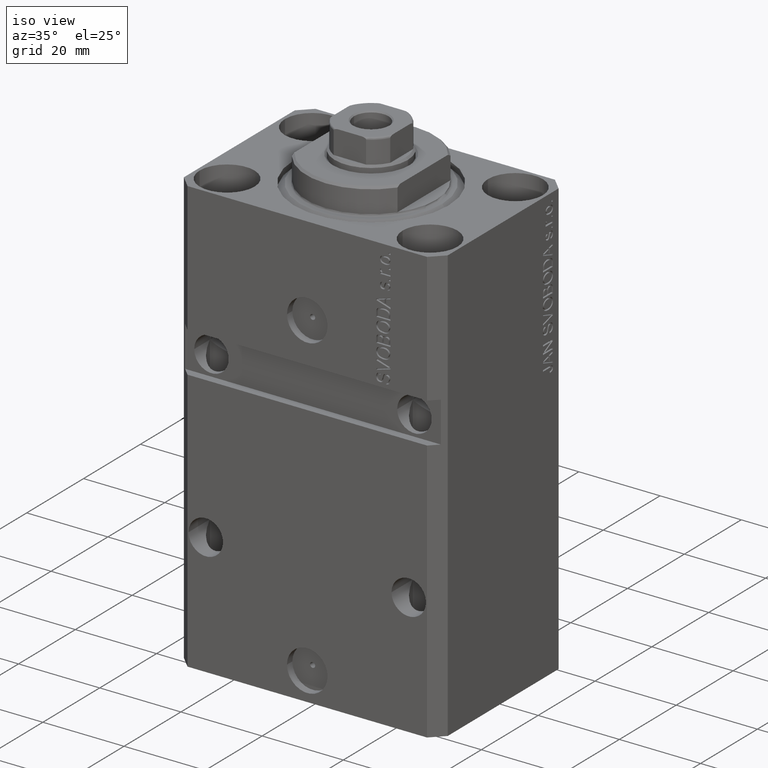
[diagram: clean part render]
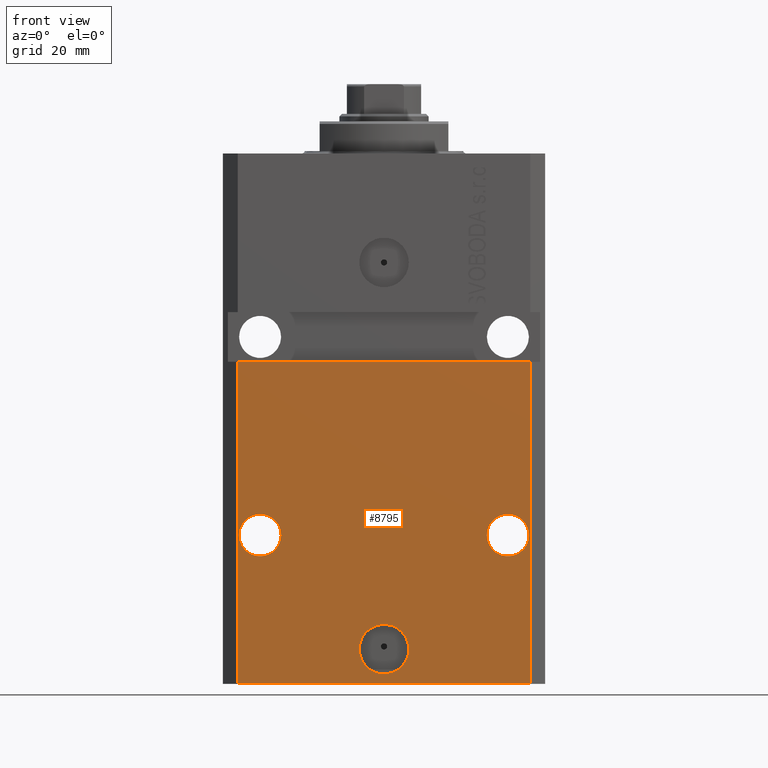
[diagram: tour spotlight — one face highlighted and labeled with its STEP entity id]
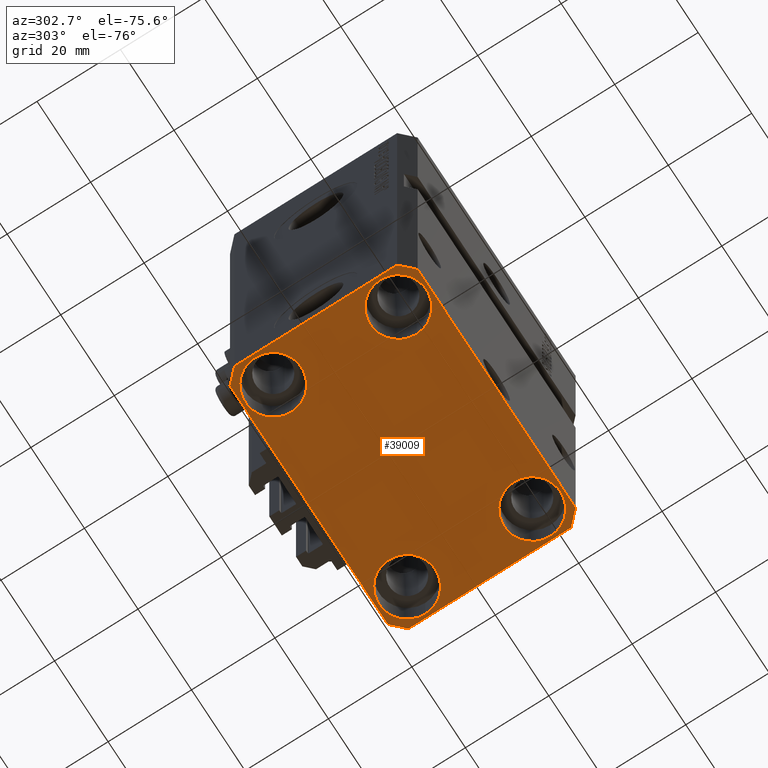
[diagram: tour spotlight — one face highlighted and labeled with its STEP entity id]
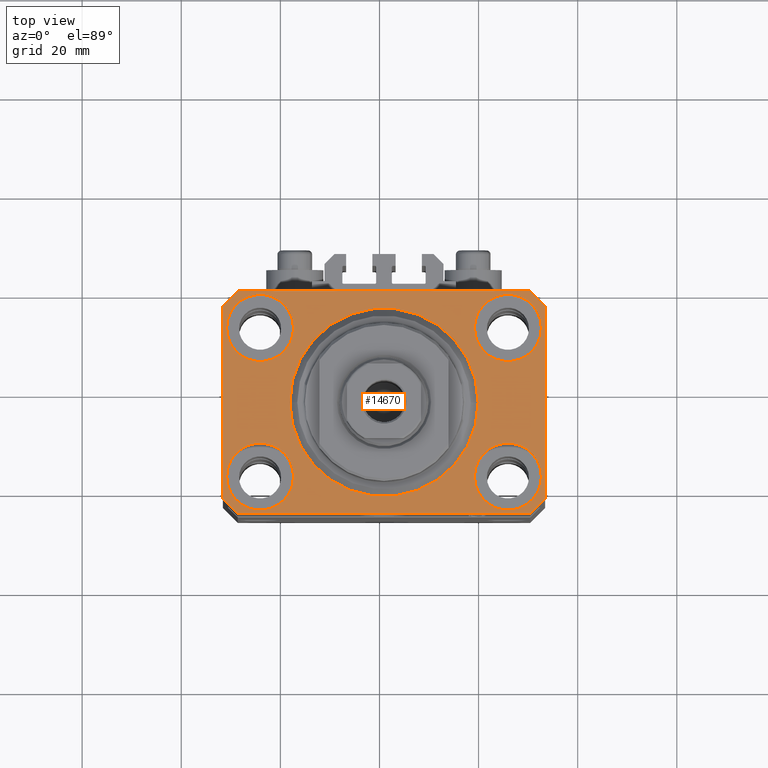
[diagram: tour spotlight — one face highlighted and labeled with its STEP entity id]
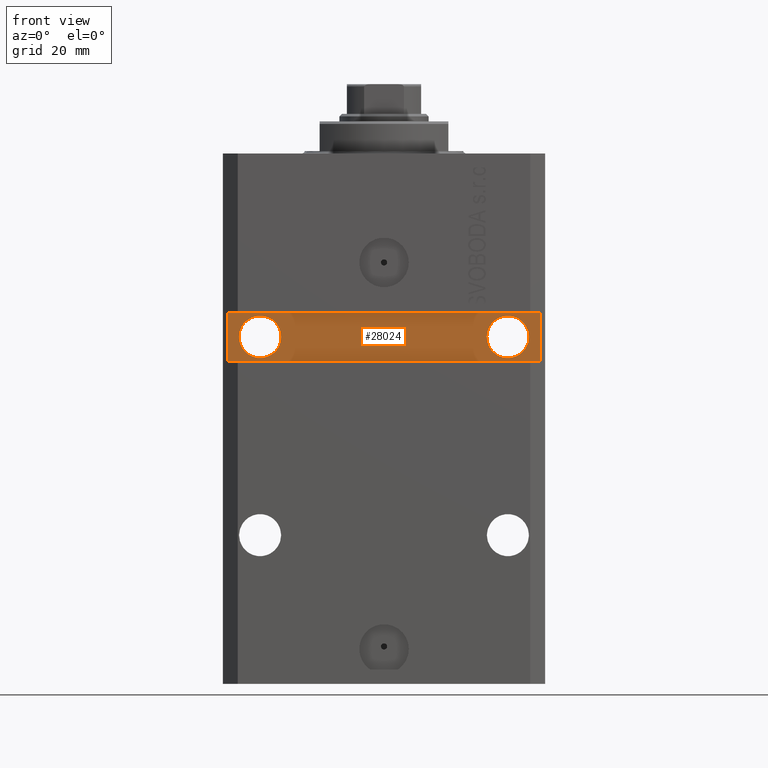
[diagram: tour spotlight — one face highlighted and labeled with its STEP entity id]
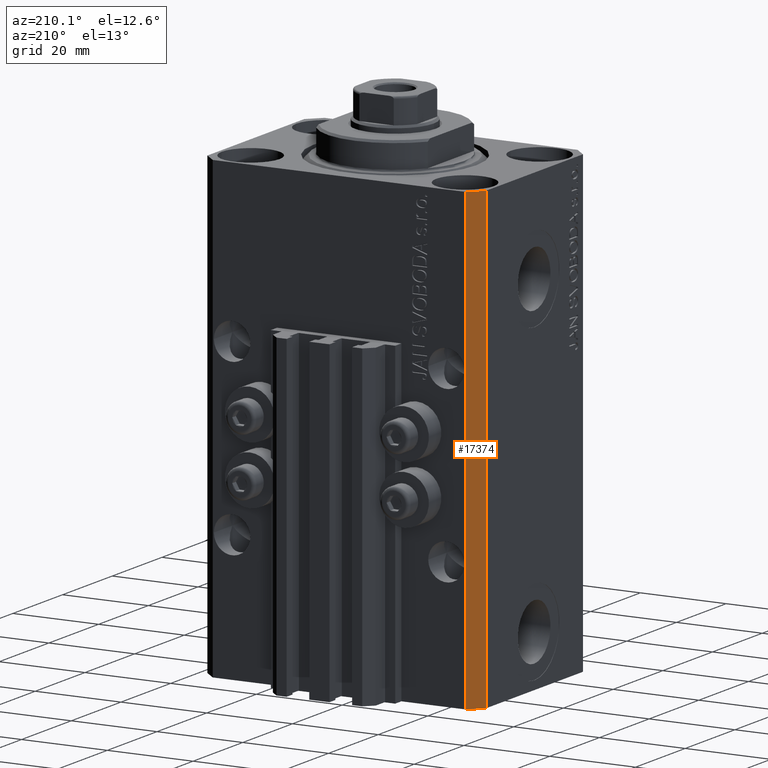
[diagram: tour spotlight — one face highlighted and labeled with its STEP entity id]
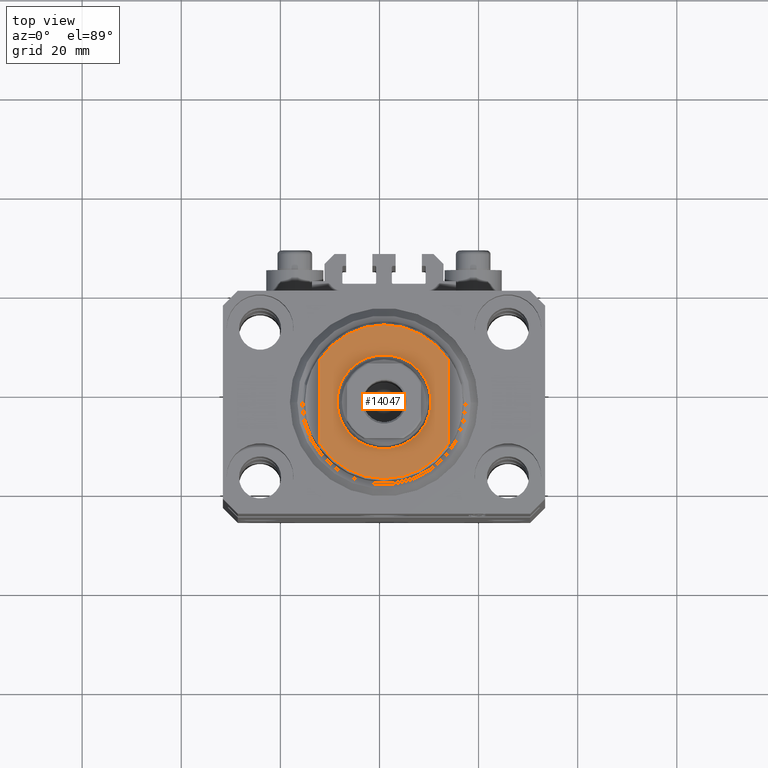
[diagram: tour spotlight — one face highlighted and labeled with its STEP entity id]
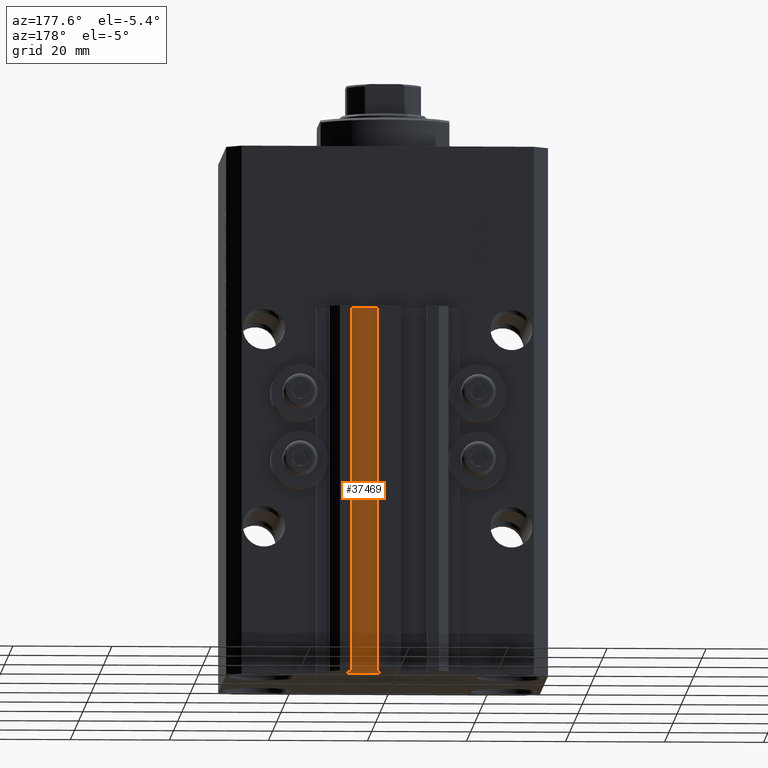
[diagram: tour spotlight — one face highlighted and labeled with its STEP entity id]
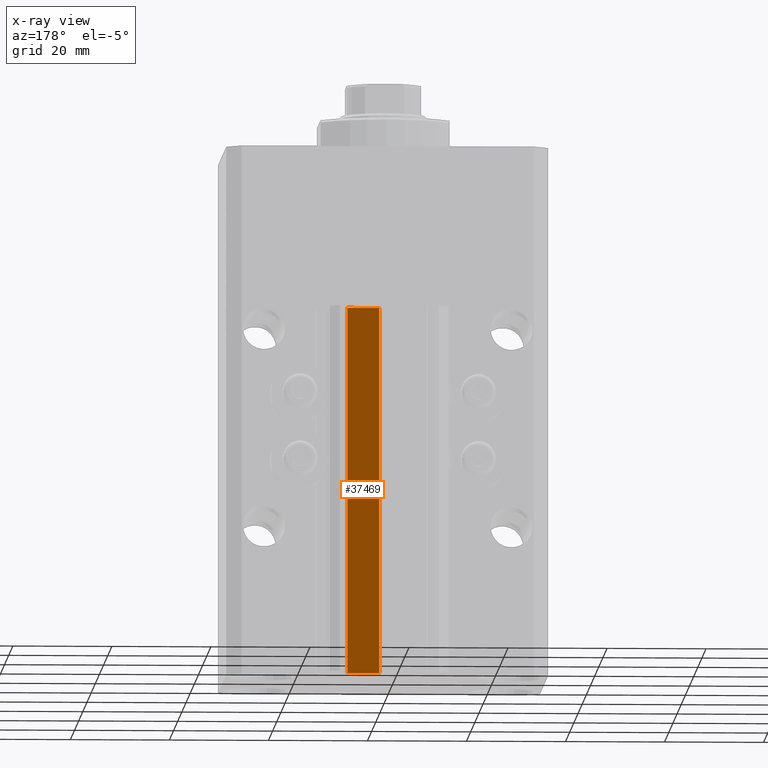
[diagram: x-ray of the same camera — body ghosted, this tour face saturated]
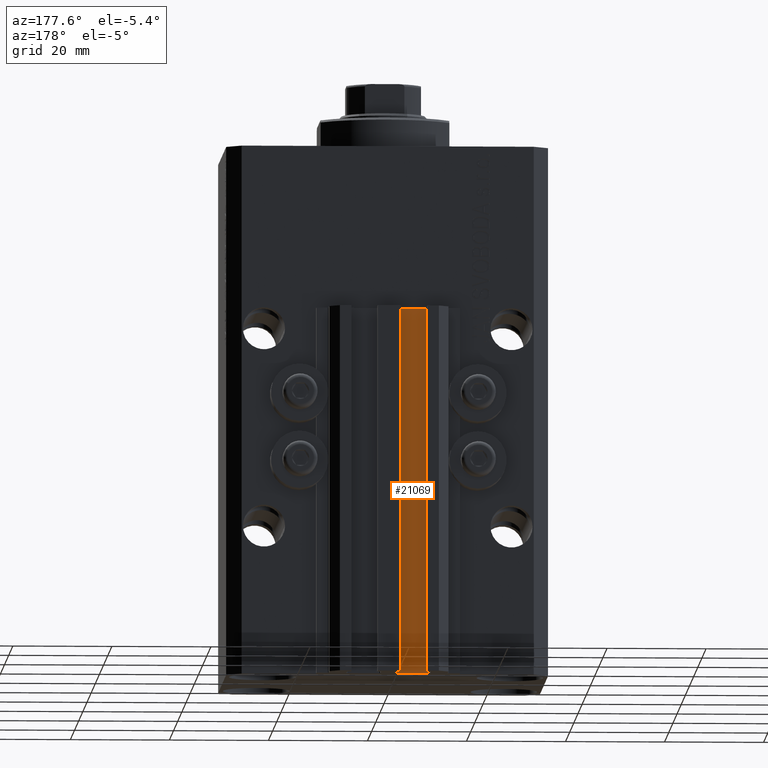
[diagram: tour spotlight — one face highlighted and labeled with its STEP entity id]
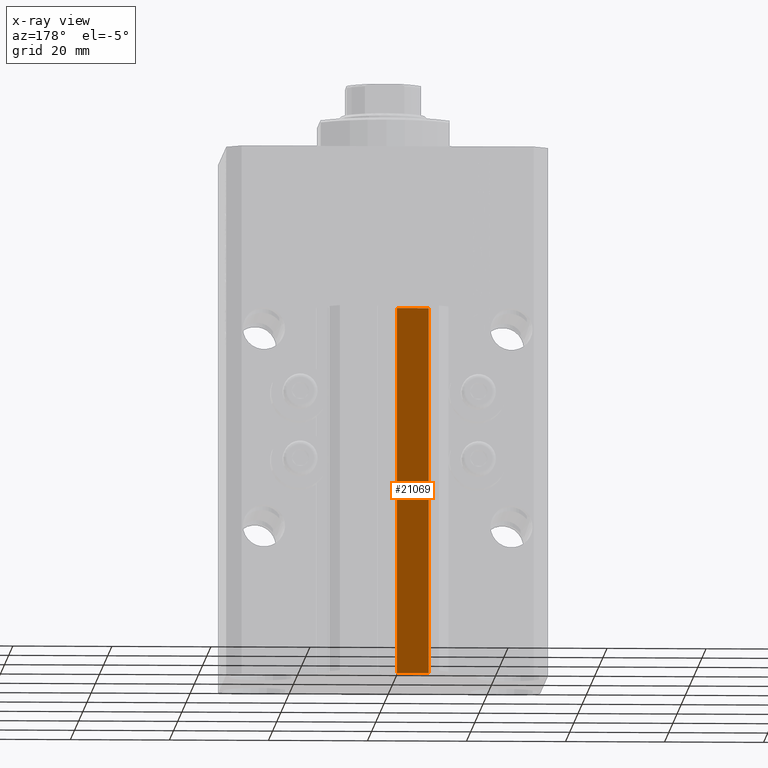
[diagram: x-ray of the same camera — body ghosted, this tour face saturated]
A machine part: a face-by-face anatomy tour. The part has 1087 B-rep faces; the first image is the clean iso view, then the 8 largest visible faces are spotlighted one at a time (largest first), each with its STEP entity span.

Face 1 — front view, entity #8795. In plain terms, the highlighted planar face has unit normal (0, -1, 0).
Definition (entity closure, byte-faithful):
#481 = CARTESIAN_POINT ( 'NONE',  ( -29.49999999999650413, -22.49999999999949907, -107.0000000000000000 ) ) ;
#580 = CIRCLE ( 'NONE', #22203, 4.249999999989057642 ) ;
#684 = CARTESIAN_POINT ( 'NONE',  ( 29.24999999998906475, -22.49999999999949196, -76.99999999999998579 ) ) ;
#824 = AXIS2_PLACEMENT_3D ( 'NONE', #9503, #9269, #38455 ) ;
#1284 = VECTOR ( 'NONE', #14742, 1000.000000000000000 ) ;
#1403 = ORIENTED_EDGE ( 'NONE', *, *, #35271, .T. ) ;
#1609 = ORIENTED_EDGE ( 'NONE', *, *, #3823, .F. ) ;
#1806 = CARTESIAN_POINT ( 'NONE',  ( -29.49999999999650413, -22.49999999999949907, -41.99999999999999289 ) ) ;
#1867 = ORIENTED_EDGE ( 'NONE', *, *, #22863, .F. ) ;
#1971 = FACE_BOUND ( 'NONE', #23644, .T. ) ;
#2688 = EDGE_CURVE ( 'NONE', #46966, #34352, #35234, .T. ) ;
#2728 = VECTOR ( 'NONE', #9188, 1000.000000000000000 ) ;
#3658 = VERTEX_POINT ( 'NONE', #12866 ) ;
#3823 = EDGE_CURVE ( 'NONE', #3658, #10182, #27415, .T. ) ;
#4876 = DIRECTION ( 'NONE',  ( 1.000000000000000000, 1.176083712526788232E-16, 0.000000000000000000 ) ) ;
#5356 = FACE_BOUND ( 'NONE', #31770, .T. ) ;
#6715 = DIRECTION ( 'NONE',  ( 1.000000000000000000, 0.000000000000000000, 0.000000000000000000 ) ) ;
#7432 = ORIENTED_EDGE ( 'NONE', *, *, #16140, .F. ) ;
#8191 = LINE ( 'NONE', #481, #1284 ) ;
#8492 = PLANE ( 'NONE',  #45134 ) ;
#8733 = CARTESIAN_POINT ( 'NONE',  ( -29.49999999999650413, -22.49999999999949907, -107.0000000000000000 ) ) ;
#8795 = ADVANCED_FACE ( 'NONE', ( #5356, #1971, #45856, #31176 ), #8492, .T. ) ;
#9188 = DIRECTION ( 'NONE',  ( 0.000000000000000000, 0.000000000000000000, 1.000000000000000000 ) ) ;
#9269 = DIRECTION ( 'NONE',  ( 1.176083712526788232E-16, -1.000000000000000000, 0.000000000000000000 ) ) ;
#9431 = VERTEX_POINT ( 'NONE', #33600 ) ;
#9503 = CARTESIAN_POINT ( 'NONE',  ( -25.00000000000000000, -22.49999999999949907, -76.99999999999998579 ) ) ;
#9617 = EDGE_CURVE ( 'NONE', #46966, #34244, #8191, .T. ) ;
#10182 = VERTEX_POINT ( 'NONE', #684 ) ;
#10218 = DIRECTION ( 'NONE',  ( 1.000000000000000000, 0.000000000000000000, 0.000000000000000000 ) ) ;
#10615 = EDGE_CURVE ( 'NONE', #20120, #9431, #20591, .T. ) ;
#10911 = DIRECTION ( 'NONE',  ( 1.000000000000000000, 1.067522139062765303E-16, 1.067522139062765303E-16 ) ) ;
#12866 = CARTESIAN_POINT ( 'NONE',  ( 20.75000000001094946, -22.49999999999949196, -76.99999999999998579 ) ) ;
#13037 = CIRCLE ( 'NONE', #44586, 5.000000000000006217 ) ;
#13346 = ORIENTED_EDGE ( 'NONE', *, *, #9617, .T. ) ;
#13439 = ORIENTED_EDGE ( 'NONE', *, *, #2688, .F. ) ;
#14742 = DIRECTION ( 'NONE',  ( 1.000000000000000000, 1.176083712526788232E-16, 0.000000000000000000 ) ) ;
#15094 = CIRCLE ( 'NONE', #18187, 4.249999999976592058 ) ;
#16051 = ORIENTED_EDGE ( 'NONE', *, *, #36355, .F. ) ;
#16122 = DIRECTION ( 'NONE',  ( -1.000000000000000000, 0.000000000000000000, 0.000000000000000000 ) ) ;
#16140 = EDGE_CURVE ( 'NONE', #10182, #3658, #580, .T. ) ;
#16698 = CARTESIAN_POINT ( 'NONE',  ( -29.49999999999650413, -22.49999999999949907, -107.0000000000000000 ) ) ;
#16837 = CARTESIAN_POINT ( 'NONE',  ( -25.00000000000000000, -22.49999999999949907, -76.99999999999998579 ) ) ;
#17072 = LINE ( 'NONE', #24293, #34297 ) ;
#17481 = DIRECTION ( 'NONE',  ( 1.176083712526788232E-16, -1.000000000000000000, 0.000000000000000000 ) ) ;
#17515 = VERTEX_POINT ( 'NONE', #31058 ) ;
#17837 = VERTEX_POINT ( 'NONE', #18813 ) ;
#18187 = AXIS2_PLACEMENT_3D ( 'NONE', #16837, #20699, #16122 ) ;
#18396 = CARTESIAN_POINT ( 'NONE',  ( -32.49999999999650413, -22.49999999999949907, -41.99999999999999289 ) ) ;
#18668 = ORIENTED_EDGE ( 'NONE', *, *, #43620, .F. ) ;
#18813 = CARTESIAN_POINT ( 'NONE',  ( -29.24999999997659472, -22.49999999999949907, -76.99999999999998579 ) ) ;
#19164 = EDGE_LOOP ( 'NONE', ( #16051, #1867 ) ) ;
#20120 = VERTEX_POINT ( 'NONE', #45700 ) ;
#20591 = CIRCLE ( 'NONE', #45201, 5.000000000000006217 ) ;
#20699 = DIRECTION ( 'NONE',  ( 1.176083712526788232E-16, -1.000000000000000000, 0.000000000000000000 ) ) ;
#22022 = DIRECTION ( 'NONE',  ( 1.176083712526788232E-16, -1.000000000000000000, 0.000000000000000000 ) ) ;
#22203 = AXIS2_PLACEMENT_3D ( 'NONE', #25642, #22022, #10218 ) ;
#22337 = CARTESIAN_POINT ( 'NONE',  ( 29.49999999999650413, -22.49999999999949196, -107.0000000000000000 ) ) ;
#22715 = CARTESIAN_POINT ( 'NONE',  ( 2.646188353185214061E-15, -22.49999999999949551, -99.99999999999998579 ) ) ;
#22863 = EDGE_CURVE ( 'NONE', #17837, #24565, #27006, .T. ) ;
#23644 = EDGE_LOOP ( 'NONE', ( #7432, #1609 ) ) ;
#24293 = CARTESIAN_POINT ( 'NONE',  ( 29.49999999999650413, -22.49999999999949196, -107.0000000000000000 ) ) ;
#24565 = VERTEX_POINT ( 'NONE', #27261 ) ;
#24754 = DIRECTION ( 'NONE',  ( 1.176083712526788232E-16, -1.000000000000000000, 0.000000000000000000 ) ) ;
#25642 = CARTESIAN_POINT ( 'NONE',  ( 25.00000000000000711, -22.49999999999949196, -76.99999999999998579 ) ) ;
#27006 = CIRCLE ( 'NONE', #824, 4.249999999976592058 ) ;
#27261 = CARTESIAN_POINT ( 'NONE',  ( -20.75000000002340883, -22.49999999999949907, -76.99999999999998579 ) ) ;
#27415 = CIRCLE ( 'NONE', #45879, 4.249999999989057642 ) ;
#30516 = EDGE_LOOP ( 'NONE', ( #32207, #13439, #13346, #1403 ) ) ;
#30555 = EDGE_CURVE ( 'NONE', #34352, #17515, #36720, .T. ) ;
#31058 = CARTESIAN_POINT ( 'NONE',  ( 29.49999999999650058, -22.49999999999949196, -41.99999999999998579 ) ) ;
#31176 = FACE_OUTER_BOUND ( 'NONE', #30516, .T. ) ;
#31420 = DIRECTION ( 'NONE',  ( 1.176083712526788232E-16, -1.000000000000000000, 0.000000000000000000 ) ) ;
#31635 = CARTESIAN_POINT ( 'NONE',  ( -29.49999999999650413, -22.49999999999949907, -107.0000000000000000 ) ) ;
#31770 = EDGE_LOOP ( 'NONE', ( #40720, #18668 ) ) ;
#31790 = DIRECTION ( 'NONE',  ( 0.000000000000000000, 0.000000000000000000, 1.000000000000000000 ) ) ;
#32207 = ORIENTED_EDGE ( 'NONE', *, *, #30555, .F. ) ;
#32568 = VECTOR ( 'NONE', #10911, 1000.000000000000000 ) ;
#33600 = CARTESIAN_POINT ( 'NONE',  ( -5.000000000000003553, -22.49999999999949551, -99.99999999999998579 ) ) ;
#34244 = VERTEX_POINT ( 'NONE', #22337 ) ;
#34297 = VECTOR ( 'NONE', #31790, 1000.000000000000000 ) ;
#34352 = VERTEX_POINT ( 'NONE', #1806 ) ;
#35234 = LINE ( 'NONE', #31635, #2728 ) ;
#35271 = EDGE_CURVE ( 'NONE', #34244, #17515, #17072, .T. ) ;
#35318 = DIRECTION ( 'NONE',  ( 1.000000000000000000, 0.000000000000000000, 0.000000000000000000 ) ) ;
#36080 = DIRECTION ( 'NONE',  ( 1.000000000000000000, 0.000000000000000000, 0.000000000000000000 ) ) ;
#36355 = EDGE_CURVE ( 'NONE', #24565, #17837, #15094, .T. ) ;
#36720 = LINE ( 'NONE', #18396, #32568 ) ;
#38455 = DIRECTION ( 'NONE',  ( -1.000000000000000000, 0.000000000000000000, 0.000000000000000000 ) ) ;
#40720 = ORIENTED_EDGE ( 'NONE', *, *, #10615, .F. ) ;
#42642 = DIRECTION ( 'NONE',  ( 1.176083712526788232E-16, -1.000000000000000000, 0.000000000000000000 ) ) ;
#42774 = CARTESIAN_POINT ( 'NONE',  ( 2.646188353185214061E-15, -22.49999999999949551, -99.99999999999998579 ) ) ;
#43620 = EDGE_CURVE ( 'NONE', #9431, #20120, #13037, .T. ) ;
#44586 = AXIS2_PLACEMENT_3D ( 'NONE', #42774, #17481, #35318 ) ;
#45134 = AXIS2_PLACEMENT_3D ( 'NONE', #16698, #31420, #4876 ) ;
#45201 = AXIS2_PLACEMENT_3D ( 'NONE', #22715, #24754, #36080 ) ;
#45700 = CARTESIAN_POINT ( 'NONE',  ( 5.000000000000008882, -22.49999999999949551, -99.99999999999998579 ) ) ;
#45856 = FACE_BOUND ( 'NONE', #19164, .T. ) ;
#45879 = AXIS2_PLACEMENT_3D ( 'NONE', #47228, #42642, #6715 ) ;
#46966 = VERTEX_POINT ( 'NONE', #8733 ) ;
#47228 = CARTESIAN_POINT ( 'NONE',  ( 25.00000000000000711, -22.49999999999949196, -76.99999999999998579 ) ) ;

Face 2 — auxiliary view, entity #39009. In plain terms, the highlighted planar face has unit normal (0, 0, 1).
Definition (entity closure, byte-faithful):
#138 = AXIS2_PLACEMENT_3D ( 'NONE', #21892, #13943, #44047 ) ;
#481 = CARTESIAN_POINT ( 'NONE',  ( -29.49999999999650413, -22.49999999999949907, -107.0000000000000000 ) ) ;
#612 = CARTESIAN_POINT ( 'NONE',  ( -25.00000000000000355, 15.00000000000000000, -107.0000000000000000 ) ) ;
#697 = VECTOR ( 'NONE', #7591, 1000.000000000000000 ) ;
#793 = EDGE_CURVE ( 'NONE', #34505, #8469, #9129, .T. ) ;
#916 = ORIENTED_EDGE ( 'NONE', *, *, #37931, .T. ) ;
#1180 = VERTEX_POINT ( 'NONE', #33121 ) ;
#1243 = CARTESIAN_POINT ( 'NONE',  ( -31.75000000002253842, 15.00000000000000000, -107.0000000000000000 ) ) ;
#1284 = VECTOR ( 'NONE', #14742, 1000.000000000000000 ) ;
#1408 = DIRECTION ( 'NONE',  ( 1.334402673828349134E-14, 1.000000000000000000, 0.000000000000000000 ) ) ;
#1419 = CARTESIAN_POINT ( 'NONE',  ( 29.49999999999707967, 22.49999999999951328, -107.0000000000000000 ) ) ;
#1612 = DIRECTION ( 'NONE',  ( 0.7071067811865483499, 0.7071067811865466846, 0.000000000000000000 ) ) ;
#1735 = CARTESIAN_POINT ( 'NONE',  ( 32.49999999999651124, -19.49999999999949196, -107.0000000000000000 ) ) ;
#2133 = ORIENTED_EDGE ( 'NONE', *, *, #45068, .T. ) ;
#2192 = CARTESIAN_POINT ( 'NONE',  ( 24.99999999999999645, 15.00000000000000888, -107.0000000000000000 ) ) ;
#2971 = LINE ( 'NONE', #17698, #3255 ) ;
#3255 = VECTOR ( 'NONE', #24695, 1000.000000000000000 ) ;
#3916 = CARTESIAN_POINT ( 'NONE',  ( -18.24999999997747224, 15.00000000000000000, -107.0000000000000000 ) ) ;
#3956 = DIRECTION ( 'NONE',  ( 1.000000000000000000, 0.000000000000000000, 0.000000000000000000 ) ) ;
#4216 = CARTESIAN_POINT ( 'NONE',  ( -29.49999999999650413, 22.49999999999949907, -107.0000000000000000 ) ) ;
#4747 = VERTEX_POINT ( 'NONE', #1243 ) ;
#4752 = AXIS2_PLACEMENT_3D ( 'NONE', #22762, #22061, #30243 ) ;
#5085 = CIRCLE ( 'NONE', #7382, 6.750000000022533087 ) ;
#5547 = ORIENTED_EDGE ( 'NONE', *, *, #44124, .T. ) ;
#6647 = DIRECTION ( 'NONE',  ( -0.7071067811865474617, -0.7071067811865474617, 0.000000000000000000 ) ) ;
#7308 = EDGE_CURVE ( 'NONE', #7585, #46966, #38842, .T. ) ;
#7382 = AXIS2_PLACEMENT_3D ( 'NONE', #612, #45222, #15331 ) ;
#7528 = CARTESIAN_POINT ( 'NONE',  ( 18.25000000002253842, -15.00000000000000000, -107.0000000000000000 ) ) ;
#7585 = VERTEX_POINT ( 'NONE', #41808 ) ;
#7591 = DIRECTION ( 'NONE',  ( -0.7071067811865352493, 0.7071067811865597852, 0.000000000000000000 ) ) ;
#8056 = LINE ( 'NONE', #37255, #33962 ) ;
#8191 = LINE ( 'NONE', #481, #1284 ) ;
#8395 = ORIENTED_EDGE ( 'NONE', *, *, #793, .F. ) ;
#8469 = VERTEX_POINT ( 'NONE', #9506 ) ;
#8733 = CARTESIAN_POINT ( 'NONE',  ( -29.49999999999650413, -22.49999999999949907, -107.0000000000000000 ) ) ;
#8839 = CARTESIAN_POINT ( 'NONE',  ( 29.49999999999650413, -22.49999999999949196, -107.0000000000000000 ) ) ;
#8959 = FACE_BOUND ( 'NONE', #40783, .T. ) ;
#9129 = LINE ( 'NONE', #23610, #33497 ) ;
#9506 = CARTESIAN_POINT ( 'NONE',  ( 32.49999999999702993, 19.49999999999945999, -107.0000000000000000 ) ) ;
#9617 = EDGE_CURVE ( 'NONE', #46966, #34244, #8191, .T. ) ;
#9880 = DIRECTION ( 'NONE',  ( 1.000000000000000000, 0.000000000000000000, 0.000000000000000000 ) ) ;
#10385 = DIRECTION ( 'NONE',  ( -0.000000000000000000, -0.000000000000000000, 1.000000000000000000 ) ) ;
#10716 = EDGE_CURVE ( 'NONE', #19369, #46114, #15236, .T. ) ;
#10987 = LINE ( 'NONE', #18014, #697 ) ;
#11086 = VERTEX_POINT ( 'NONE', #11250 ) ;
#11250 = CARTESIAN_POINT ( 'NONE',  ( 31.74999999995845101, 15.00000000000000888, -107.0000000000000000 ) ) ;
#12001 = EDGE_CURVE ( 'NONE', #34244, #34505, #41636, .T. ) ;
#12335 = FACE_BOUND ( 'NONE', #28245, .T. ) ;
#12528 = DIRECTION ( 'NONE',  ( -0.000000000000000000, -0.000000000000000000, 1.000000000000000000 ) ) ;
#13260 = CIRCLE ( 'NONE', #26375, 6.749999999958452790 ) ;
#13943 = DIRECTION ( 'NONE',  ( -0.000000000000000000, -0.000000000000000000, 1.000000000000000000 ) ) ;
#14742 = DIRECTION ( 'NONE',  ( 1.000000000000000000, 1.176083712526788232E-16, 0.000000000000000000 ) ) ;
#15165 = ORIENTED_EDGE ( 'NONE', *, *, #36551, .T. ) ;
#15236 = LINE ( 'NONE', #28848, #20480 ) ;
#15331 = DIRECTION ( 'NONE',  ( 1.000000000000000000, 0.000000000000000000, 0.000000000000000000 ) ) ;
#15394 = CARTESIAN_POINT ( 'NONE',  ( -32.49999999999650413, 19.49999999999949907, -107.0000000000000000 ) ) ;
#15833 = VERTEX_POINT ( 'NONE', #20968 ) ;
#16113 = AXIS2_PLACEMENT_3D ( 'NONE', #31118, #12528, #45796 ) ;
#16212 = PLANE ( 'NONE',  #45175 ) ;
#16215 = VERTEX_POINT ( 'NONE', #3916 ) ;
#16997 = AXIS2_PLACEMENT_3D ( 'NONE', #29597, #44275, #25976 ) ;
#17079 = ORIENTED_EDGE ( 'NONE', *, *, #30777, .T. ) ;
#17698 = CARTESIAN_POINT ( 'NONE',  ( 29.49999999999707967, 22.49999999999951328, -107.0000000000000000 ) ) ;
#18014 = CARTESIAN_POINT ( 'NONE',  ( 32.49999999999702993, 19.49999999999945999, -107.0000000000000000 ) ) ;
#18216 = CIRCLE ( 'NONE', #36700, 6.749999999977465137 ) ;
#18420 = CIRCLE ( 'NONE', #16113, 6.750000000041541881 ) ;
#18537 = CIRCLE ( 'NONE', #16997, 6.750000000041541881 ) ;
#18567 = VERTEX_POINT ( 'NONE', #24660 ) ;
#19106 = CARTESIAN_POINT ( 'NONE',  ( 0.000000000000000000, 0.000000000000000000, -107.0000000000000000 ) ) ;
#19369 = VERTEX_POINT ( 'NONE', #4216 ) ;
#19716 = VECTOR ( 'NONE', #1612, 1000.000000000000000 ) ;
#19956 = ORIENTED_EDGE ( 'NONE', *, *, #25906, .T. ) ;
#20480 = VECTOR ( 'NONE', #6647, 1000.000000000000114 ) ;
#20921 = ORIENTED_EDGE ( 'NONE', *, *, #29490, .T. ) ;
#20968 = CARTESIAN_POINT ( 'NONE',  ( -31.75000000004154899, -15.00000000000000000, -107.0000000000000000 ) ) ;
#21471 = CARTESIAN_POINT ( 'NONE',  ( 24.99999999999999645, 15.00000000000000888, -107.0000000000000000 ) ) ;
#21892 = CARTESIAN_POINT ( 'NONE',  ( 25.00000000000000355, -15.00000000000000000, -107.0000000000000000 ) ) ;
#22031 = VECTOR ( 'NONE', #39087, 1000.000000000000114 ) ;
#22061 = DIRECTION ( 'NONE',  ( -0.000000000000000000, -0.000000000000000000, 1.000000000000000000 ) ) ;
#22337 = CARTESIAN_POINT ( 'NONE',  ( 29.49999999999650413, -22.49999999999949196, -107.0000000000000000 ) ) ;
#22496 = CIRCLE ( 'NONE', #4752, 6.750000000022533087 ) ;
#22717 = FACE_BOUND ( 'NONE', #30073, .T. ) ;
#22762 = CARTESIAN_POINT ( 'NONE',  ( -25.00000000000000355, 15.00000000000000000, -107.0000000000000000 ) ) ;
#23209 = DIRECTION ( 'NONE',  ( 1.000000000000000000, 0.000000000000000000, -0.000000000000000000 ) ) ;
#23610 = CARTESIAN_POINT ( 'NONE',  ( 32.49999999999651124, -19.49999999999949196, -107.0000000000000000 ) ) ;
#23884 = EDGE_CURVE ( 'NONE', #46114, #7585, #8056, .T. ) ;
#24251 = VERTEX_POINT ( 'NONE', #31425 ) ;
#24392 = DIRECTION ( 'NONE',  ( 1.000000000000000000, 0.000000000000000000, 0.000000000000000000 ) ) ;
#24660 = CARTESIAN_POINT ( 'NONE',  ( 31.74999999997746869, -15.00000000000000000, -107.0000000000000000 ) ) ;
#24695 = DIRECTION ( 'NONE',  ( -1.000000000000000000, -2.352167425053553784E-16, 0.000000000000000000 ) ) ;
#25906 = EDGE_CURVE ( 'NONE', #24251, #15833, #18537, .T. ) ;
#25940 = DIRECTION ( 'NONE',  ( 0.000000000000000000, -1.000000000000000000, 0.000000000000000000 ) ) ;
#25976 = DIRECTION ( 'NONE',  ( 1.000000000000000000, 0.000000000000000000, 0.000000000000000000 ) ) ;
#26254 = ORIENTED_EDGE ( 'NONE', *, *, #29914, .T. ) ;
#26340 = FACE_OUTER_BOUND ( 'NONE', #42893, .T. ) ;
#26375 = AXIS2_PLACEMENT_3D ( 'NONE', #2192, #10385, #24392 ) ;
#26584 = VERTEX_POINT ( 'NONE', #1419 ) ;
#28245 = EDGE_LOOP ( 'NONE', ( #15165, #20921 ) ) ;
#28492 = VERTEX_POINT ( 'NONE', #7528 ) ;
#28808 = ORIENTED_EDGE ( 'NONE', *, *, #47413, .F. ) ;
#28848 = CARTESIAN_POINT ( 'NONE',  ( -29.49999999999650413, 22.49999999999949907, -107.0000000000000000 ) ) ;
#29490 = EDGE_CURVE ( 'NONE', #16215, #4747, #22496, .T. ) ;
#29597 = CARTESIAN_POINT ( 'NONE',  ( -25.00000000000000355, -15.00000000000000000, -107.0000000000000000 ) ) ;
#29823 = ORIENTED_EDGE ( 'NONE', *, *, #23884, .F. ) ;
#29914 = EDGE_CURVE ( 'NONE', #18567, #28492, #38676, .T. ) ;
#30073 = EDGE_LOOP ( 'NONE', ( #916, #26254 ) ) ;
#30243 = DIRECTION ( 'NONE',  ( 1.000000000000000000, 0.000000000000000000, 0.000000000000000000 ) ) ;
#30399 = EDGE_CURVE ( 'NONE', #26584, #19369, #2971, .T. ) ;
#30777 = EDGE_CURVE ( 'NONE', #1180, #11086, #13260, .T. ) ;
#30788 = AXIS2_PLACEMENT_3D ( 'NONE', #21471, #32089, #9880 ) ;
#30930 = FACE_BOUND ( 'NONE', #32627, .T. ) ;
#31118 = CARTESIAN_POINT ( 'NONE',  ( -25.00000000000000355, -15.00000000000000000, -107.0000000000000000 ) ) ;
#31425 = CARTESIAN_POINT ( 'NONE',  ( -18.24999999995845812, -15.00000000000000000, -107.0000000000000000 ) ) ;
#31867 = CARTESIAN_POINT ( 'NONE',  ( -32.49999999999650413, -19.49999999999949907, -107.0000000000000000 ) ) ;
#32089 = DIRECTION ( 'NONE',  ( -0.000000000000000000, -0.000000000000000000, 1.000000000000000000 ) ) ;
#32627 = EDGE_LOOP ( 'NONE', ( #5547, #19956 ) ) ;
#33121 = CARTESIAN_POINT ( 'NONE',  ( 18.25000000004154543, 15.00000000000000888, -107.0000000000000000 ) ) ;
#33469 = ORIENTED_EDGE ( 'NONE', *, *, #10716, .F. ) ;
#33497 = VECTOR ( 'NONE', #1408, 1000.000000000000000 ) ;
#33962 = VECTOR ( 'NONE', #25940, 1000.000000000000000 ) ;
#34244 = VERTEX_POINT ( 'NONE', #22337 ) ;
#34505 = VERTEX_POINT ( 'NONE', #1735 ) ;
#36313 = DIRECTION ( 'NONE',  ( -0.000000000000000000, -0.000000000000000000, 1.000000000000000000 ) ) ;
#36551 = EDGE_CURVE ( 'NONE', #4747, #16215, #5085, .T. ) ;
#36700 = AXIS2_PLACEMENT_3D ( 'NONE', #47157, #36313, #3956 ) ;
#37255 = CARTESIAN_POINT ( 'NONE',  ( -32.49999999999650413, 19.49999999999949907, -107.0000000000000000 ) ) ;
#37931 = EDGE_CURVE ( 'NONE', #28492, #18567, #18216, .T. ) ;
#38230 = ORIENTED_EDGE ( 'NONE', *, *, #7308, .F. ) ;
#38676 = CIRCLE ( 'NONE', #138, 6.749999999977465137 ) ;
#38842 = LINE ( 'NONE', #31867, #22031 ) ;
#39009 = ADVANCED_FACE ( 'NONE', ( #30930, #22717, #8959, #12335, #26340 ), #16212, .F. ) ;
#39087 = DIRECTION ( 'NONE',  ( 0.7071067811865474617, -0.7071067811865474617, 0.000000000000000000 ) ) ;
#39972 = ORIENTED_EDGE ( 'NONE', *, *, #12001, .F. ) ;
#40783 = EDGE_LOOP ( 'NONE', ( #17079, #2133 ) ) ;
#41506 = DIRECTION ( 'NONE',  ( 0.000000000000000000, 0.000000000000000000, 1.000000000000000000 ) ) ;
#41562 = CIRCLE ( 'NONE', #30788, 6.749999999958452790 ) ;
#41636 = LINE ( 'NONE', #8839, #19716 ) ;
#41808 = CARTESIAN_POINT ( 'NONE',  ( -32.49999999999650413, -19.49999999999949907, -107.0000000000000000 ) ) ;
#42893 = EDGE_LOOP ( 'NONE', ( #47232, #28808, #8395, #39972, #46255, #38230, #29823, #33469 ) ) ;
#44047 = DIRECTION ( 'NONE',  ( 1.000000000000000000, 0.000000000000000000, 0.000000000000000000 ) ) ;
#44124 = EDGE_CURVE ( 'NONE', #15833, #24251, #18420, .T. ) ;
#44275 = DIRECTION ( 'NONE',  ( -0.000000000000000000, -0.000000000000000000, 1.000000000000000000 ) ) ;
#45068 = EDGE_CURVE ( 'NONE', #11086, #1180, #41562, .T. ) ;
#45175 = AXIS2_PLACEMENT_3D ( 'NONE', #19106, #41506, #23209 ) ;
#45222 = DIRECTION ( 'NONE',  ( -0.000000000000000000, -0.000000000000000000, 1.000000000000000000 ) ) ;
#45796 = DIRECTION ( 'NONE',  ( 1.000000000000000000, 0.000000000000000000, 0.000000000000000000 ) ) ;
#46114 = VERTEX_POINT ( 'NONE', #15394 ) ;
#46255 = ORIENTED_EDGE ( 'NONE', *, *, #9617, .F. ) ;
#46966 = VERTEX_POINT ( 'NONE', #8733 ) ;
#47157 = CARTESIAN_POINT ( 'NONE',  ( 25.00000000000000355, -15.00000000000000000, -107.0000000000000000 ) ) ;
#47232 = ORIENTED_EDGE ( 'NONE', *, *, #30399, .F. ) ;
#47413 = EDGE_CURVE ( 'NONE', #8469, #26584, #10987, .T. ) ;

Face 3 — top view, entity #14670. In plain terms, the highlighted planar face has unit normal (0, 0, 1).
Definition (entity closure, byte-faithful):
#10 = VERTEX_POINT ( 'NONE', #40893 ) ;
#262 = CARTESIAN_POINT ( 'NONE',  ( 25.00000000000000355, -15.00000000000000000, 0.000000000000000000 ) ) ;
#739 = VERTEX_POINT ( 'NONE', #7684 ) ;
#1250 = VECTOR ( 'NONE', #3976, 1000.000000000000000 ) ;
#1373 = DIRECTION ( 'NONE',  ( 1.000000000000000000, 0.000000000000000000, 0.000000000000000000 ) ) ;
#1775 = CARTESIAN_POINT ( 'NONE',  ( 24.99999999999999645, 15.00000000000000888, 0.000000000000000000 ) ) ;
#2330 = VERTEX_POINT ( 'NONE', #3312 ) ;
#2620 = VERTEX_POINT ( 'NONE', #45109 ) ;
#2722 = AXIS2_PLACEMENT_3D ( 'NONE', #40703, #15381, #18770 ) ;
#2748 = EDGE_CURVE ( 'NONE', #10, #739, #2909, .T. ) ;
#2754 = CIRCLE ( 'NONE', #33527, 6.749999999977465137 ) ;
#2909 = LINE ( 'NONE', #32584, #32042 ) ;
#3312 = CARTESIAN_POINT ( 'NONE',  ( -31.75000000004154899, -15.00000000000000000, 0.000000000000000000 ) ) ;
#3443 = EDGE_CURVE ( 'NONE', #15770, #14914, #12389, .T. ) ;
#3585 = CARTESIAN_POINT ( 'NONE',  ( 31.74999999997746869, -15.00000000000000000, 0.000000000000000000 ) ) ;
#3592 = EDGE_CURVE ( 'NONE', #47122, #41247, #45115, .T. ) ;
#3976 = DIRECTION ( 'NONE',  ( 1.000000000000000000, 1.176083712526788232E-16, 0.000000000000000000 ) ) ;
#4385 = DIRECTION ( 'NONE',  ( -0.7071067811865352493, 0.7071067811865597852, 0.000000000000000000 ) ) ;
#4542 = CIRCLE ( 'NONE', #8397, 19.00000000000000000 ) ;
#4664 = VERTEX_POINT ( 'NONE', #29728 ) ;
#4691 = CARTESIAN_POINT ( 'NONE',  ( -29.49999999999650413, -22.49999999999949907, 0.000000000000000000 ) ) ;
#4697 = EDGE_CURVE ( 'NONE', #21782, #15770, #23215, .T. ) ;
#4931 = CARTESIAN_POINT ( 'NONE',  ( -18.24999999995846167, -15.00000000000000000, 0.000000000000000000 ) ) ;
#4987 = CARTESIAN_POINT ( 'NONE',  ( -25.00000000000000355, -15.00000000000000000, 0.000000000000000000 ) ) ;
#5010 = EDGE_CURVE ( 'NONE', #14914, #28778, #10237, .T. ) ;
#5276 = CARTESIAN_POINT ( 'NONE',  ( 29.49999999999707967, 22.49999999999951328, 0.000000000000000000 ) ) ;
#5362 = VERTEX_POINT ( 'NONE', #45017 ) ;
#5524 = CARTESIAN_POINT ( 'NONE',  ( -25.00000000000000355, -15.00000000000000000, 0.000000000000000000 ) ) ;
#6426 = CARTESIAN_POINT ( 'NONE',  ( -25.00000000000000355, 15.00000000000000000, 0.000000000000000000 ) ) ;
#6455 = EDGE_CURVE ( 'NONE', #43623, #21782, #9821, .T. ) ;
#7684 = CARTESIAN_POINT ( 'NONE',  ( -29.49999999999650413, -22.49999999999949907, 0.000000000000000000 ) ) ;
#8153 = CIRCLE ( 'NONE', #18208, 6.750000000022533087 ) ;
#8300 = LINE ( 'NONE', #4691, #1250 ) ;
#8365 = EDGE_CURVE ( 'NONE', #739, #22720, #8300, .T. ) ;
#8397 = AXIS2_PLACEMENT_3D ( 'NONE', #33544, #29691, #18830 ) ;
#8738 = LINE ( 'NONE', #23234, #43505 ) ;
#9489 = FACE_BOUND ( 'NONE', #27270, .T. ) ;
#9821 = LINE ( 'NONE', #28883, #35837 ) ;
#9853 = DIRECTION ( 'NONE',  ( 1.000000000000000000, 0.000000000000000000, 0.000000000000000000 ) ) ;
#9905 = DIRECTION ( 'NONE',  ( 1.000000000000000000, 0.000000000000000000, 0.000000000000000000 ) ) ;
#9972 = DIRECTION ( 'NONE',  ( 0.000000000000000000, 0.000000000000000000, 1.000000000000000000 ) ) ;
#10214 = DIRECTION ( 'NONE',  ( 1.000000000000000000, 0.000000000000000000, 0.000000000000000000 ) ) ;
#10237 = LINE ( 'NONE', #46401, #16710 ) ;
#10782 = EDGE_LOOP ( 'NONE', ( #35717, #40475 ) ) ;
#11899 = CARTESIAN_POINT ( 'NONE',  ( 29.49999999999707967, 22.49999999999951328, 0.000000000000000000 ) ) ;
#12210 = EDGE_CURVE ( 'NONE', #29185, #4664, #8153, .T. ) ;
#12342 = CARTESIAN_POINT ( 'NONE',  ( 32.49999999999702993, 19.49999999999945999, 0.000000000000000000 ) ) ;
#12389 = LINE ( 'NONE', #11899, #41258 ) ;
#12467 = CARTESIAN_POINT ( 'NONE',  ( 24.99999999999999645, 15.00000000000000888, 0.000000000000000000 ) ) ;
#12697 = DIRECTION ( 'NONE',  ( 1.000000000000000000, 0.000000000000000000, 0.000000000000000000 ) ) ;
#12802 = VECTOR ( 'NONE', #4385, 1000.000000000000000 ) ;
#13088 = ORIENTED_EDGE ( 'NONE', *, *, #19542, .F. ) ;
#13582 = FACE_BOUND ( 'NONE', #10782, .T. ) ;
#13606 = CARTESIAN_POINT ( 'NONE',  ( 32.49999999999651124, -19.49999999999949196, 0.000000000000000000 ) ) ;
#13664 = AXIS2_PLACEMENT_3D ( 'NONE', #5524, #20251, #9853 ) ;
#13769 = DIRECTION ( 'NONE',  ( 0.000000000000000000, 0.000000000000000000, 1.000000000000000000 ) ) ;
#13831 = CARTESIAN_POINT ( 'NONE',  ( 0.000000000000000000, 0.000000000000000000, 0.000000000000000000 ) ) ;
#14225 = CARTESIAN_POINT ( 'NONE',  ( -32.49999999999650413, 19.49999999999949907, 0.000000000000000000 ) ) ;
#14304 = ORIENTED_EDGE ( 'NONE', *, *, #30746, .F. ) ;
#14670 = ADVANCED_FACE ( 'NONE', ( #41075, #9489, #27596, #13582, #24205, #46865 ), #16738, .T. ) ;
#14914 = VERTEX_POINT ( 'NONE', #33818 ) ;
#14976 = DIRECTION ( 'NONE',  ( 0.000000000000000000, 0.000000000000000000, 1.000000000000000000 ) ) ;
#15381 = DIRECTION ( 'NONE',  ( 0.000000000000000000, 0.000000000000000000, 1.000000000000000000 ) ) ;
#15696 = ORIENTED_EDGE ( 'NONE', *, *, #23476, .F. ) ;
#15770 = VERTEX_POINT ( 'NONE', #5276 ) ;
#16439 = CARTESIAN_POINT ( 'NONE',  ( 25.00000000000000355, -15.00000000000000000, 0.000000000000000000 ) ) ;
#16710 = VECTOR ( 'NONE', #35323, 1000.000000000000114 ) ;
#16738 = PLANE ( 'NONE',  #26768 ) ;
#17136 = AXIS2_PLACEMENT_3D ( 'NONE', #20541, #13769, #25111 ) ;
#18151 = VERTEX_POINT ( 'NONE', #4931 ) ;
#18208 = AXIS2_PLACEMENT_3D ( 'NONE', #6426, #35851, #46935 ) ;
#18519 = DIRECTION ( 'NONE',  ( 0.000000000000000000, -1.000000000000000000, 0.000000000000000000 ) ) ;
#18770 = DIRECTION ( 'NONE',  ( 1.000000000000000000, 0.000000000000000000, 0.000000000000000000 ) ) ;
#18830 = DIRECTION ( 'NONE',  ( 1.000000000000000000, 0.000000000000000000, 0.000000000000000000 ) ) ;
#19159 = DIRECTION ( 'NONE',  ( -1.000000000000000000, -2.352167425053553784E-16, 0.000000000000000000 ) ) ;
#19221 = CARTESIAN_POINT ( 'NONE',  ( 29.49999999999650413, -22.49999999999949196, 0.000000000000000000 ) ) ;
#19245 = CARTESIAN_POINT ( 'NONE',  ( 18.25000000004154543, 15.00000000000000888, 0.000000000000000000 ) ) ;
#19542 = EDGE_CURVE ( 'NONE', #5362, #2620, #4542, .T. ) ;
#20109 = CIRCLE ( 'NONE', #47053, 6.749999999958452790 ) ;
#20232 = CIRCLE ( 'NONE', #17136, 19.00000000000000000 ) ;
#20251 = DIRECTION ( 'NONE',  ( 0.000000000000000000, 0.000000000000000000, 1.000000000000000000 ) ) ;
#20541 = CARTESIAN_POINT ( 'NONE',  ( 0.000000000000000000, 0.000000000000000000, 0.000000000000000000 ) ) ;
#20598 = DIRECTION ( 'NONE',  ( 1.000000000000000000, 0.000000000000000000, -0.000000000000000000 ) ) ;
#21782 = VERTEX_POINT ( 'NONE', #26740 ) ;
#22377 = ORIENTED_EDGE ( 'NONE', *, *, #3592, .F. ) ;
#22378 = ORIENTED_EDGE ( 'NONE', *, *, #38424, .F. ) ;
#22720 = VERTEX_POINT ( 'NONE', #19221 ) ;
#23215 = LINE ( 'NONE', #12342, #12802 ) ;
#23234 = CARTESIAN_POINT ( 'NONE',  ( 29.49999999999650413, -22.49999999999949196, 0.000000000000000000 ) ) ;
#23323 = CARTESIAN_POINT ( 'NONE',  ( -32.49999999999650413, 19.49999999999949907, 0.000000000000000000 ) ) ;
#23476 = EDGE_CURVE ( 'NONE', #41247, #47122, #20109, .T. ) ;
#23513 = CIRCLE ( 'NONE', #2722, 6.750000000022533087 ) ;
#24205 = FACE_BOUND ( 'NONE', #39681, .T. ) ;
#24515 = ORIENTED_EDGE ( 'NONE', *, *, #26924, .T. ) ;
#24682 = VERTEX_POINT ( 'NONE', #24845 ) ;
#24703 = ORIENTED_EDGE ( 'NONE', *, *, #6455, .T. ) ;
#24750 = VECTOR ( 'NONE', #18519, 1000.000000000000000 ) ;
#24802 = VERTEX_POINT ( 'NONE', #3585 ) ;
#24845 = CARTESIAN_POINT ( 'NONE',  ( 18.25000000002253842, -15.00000000000000000, 0.000000000000000000 ) ) ;
#25111 = DIRECTION ( 'NONE',  ( 1.000000000000000000, 0.000000000000000000, 0.000000000000000000 ) ) ;
#25248 = CIRCLE ( 'NONE', #13664, 6.750000000041541881 ) ;
#26225 = LINE ( 'NONE', #23323, #24750 ) ;
#26740 = CARTESIAN_POINT ( 'NONE',  ( 32.49999999999702993, 19.49999999999945999, 0.000000000000000000 ) ) ;
#26768 = AXIS2_PLACEMENT_3D ( 'NONE', #13831, #45892, #20598 ) ;
#26924 = EDGE_CURVE ( 'NONE', #28778, #10, #26225, .T. ) ;
#27270 = EDGE_LOOP ( 'NONE', ( #38950, #22378 ) ) ;
#27596 = FACE_BOUND ( 'NONE', #33811, .T. ) ;
#27717 = ORIENTED_EDGE ( 'NONE', *, *, #2748, .T. ) ;
#28334 = ORIENTED_EDGE ( 'NONE', *, *, #39592, .F. ) ;
#28774 = DIRECTION ( 'NONE',  ( 1.000000000000000000, 0.000000000000000000, 0.000000000000000000 ) ) ;
#28778 = VERTEX_POINT ( 'NONE', #14225 ) ;
#28883 = CARTESIAN_POINT ( 'NONE',  ( 32.49999999999651124, -19.49999999999949196, 0.000000000000000000 ) ) ;
#28959 = DIRECTION ( 'NONE',  ( 0.7071067811865474617, -0.7071067811865474617, 0.000000000000000000 ) ) ;
#29185 = VERTEX_POINT ( 'NONE', #38485 ) ;
#29594 = ORIENTED_EDGE ( 'NONE', *, *, #40623, .F. ) ;
#29691 = DIRECTION ( 'NONE',  ( 0.000000000000000000, 0.000000000000000000, 1.000000000000000000 ) ) ;
#29716 = AXIS2_PLACEMENT_3D ( 'NONE', #1775, #9972, #10214 ) ;
#29728 = CARTESIAN_POINT ( 'NONE',  ( -18.24999999997747224, 15.00000000000000000, 0.000000000000000000 ) ) ;
#29807 = AXIS2_PLACEMENT_3D ( 'NONE', #16439, #31876, #9905 ) ;
#30578 = DIRECTION ( 'NONE',  ( 0.000000000000000000, 0.000000000000000000, 1.000000000000000000 ) ) ;
#30746 = EDGE_CURVE ( 'NONE', #2620, #5362, #20232, .T. ) ;
#30906 = EDGE_LOOP ( 'NONE', ( #41125, #44049, #24515, #27717, #36968, #42825, #24703, #42783 ) ) ;
#30953 = DIRECTION ( 'NONE',  ( 0.7071067811865483499, 0.7071067811865466846, 0.000000000000000000 ) ) ;
#31378 = CIRCLE ( 'NONE', #29807, 6.749999999977465137 ) ;
#31534 = DIRECTION ( 'NONE',  ( 0.000000000000000000, 0.000000000000000000, 1.000000000000000000 ) ) ;
#31876 = DIRECTION ( 'NONE',  ( 0.000000000000000000, 0.000000000000000000, 1.000000000000000000 ) ) ;
#32042 = VECTOR ( 'NONE', #28959, 1000.000000000000114 ) ;
#32584 = CARTESIAN_POINT ( 'NONE',  ( -32.49999999999650413, -19.49999999999949907, 0.000000000000000000 ) ) ;
#33527 = AXIS2_PLACEMENT_3D ( 'NONE', #262, #14976, #28774 ) ;
#33544 = CARTESIAN_POINT ( 'NONE',  ( 0.000000000000000000, 0.000000000000000000, 0.000000000000000000 ) ) ;
#33811 = EDGE_LOOP ( 'NONE', ( #15696, #22377 ) ) ;
#33818 = CARTESIAN_POINT ( 'NONE',  ( -29.49999999999650413, 22.49999999999949907, 0.000000000000000000 ) ) ;
#34355 = EDGE_LOOP ( 'NONE', ( #29594, #28334 ) ) ;
#34653 = EDGE_CURVE ( 'NONE', #22720, #43623, #8738, .T. ) ;
#35233 = EDGE_CURVE ( 'NONE', #4664, #29185, #23513, .T. ) ;
#35323 = DIRECTION ( 'NONE',  ( -0.7071067811865474617, -0.7071067811865474617, 0.000000000000000000 ) ) ;
#35717 = ORIENTED_EDGE ( 'NONE', *, *, #35233, .F. ) ;
#35767 = EDGE_CURVE ( 'NONE', #24802, #24682, #2754, .T. ) ;
#35837 = VECTOR ( 'NONE', #47200, 1000.000000000000000 ) ;
#35851 = DIRECTION ( 'NONE',  ( 0.000000000000000000, 0.000000000000000000, 1.000000000000000000 ) ) ;
#36798 = AXIS2_PLACEMENT_3D ( 'NONE', #4987, #31534, #12697 ) ;
#36968 = ORIENTED_EDGE ( 'NONE', *, *, #8365, .T. ) ;
#38424 = EDGE_CURVE ( 'NONE', #24682, #24802, #31378, .T. ) ;
#38485 = CARTESIAN_POINT ( 'NONE',  ( -31.75000000002253842, 15.00000000000000000, 0.000000000000000000 ) ) ;
#38950 = ORIENTED_EDGE ( 'NONE', *, *, #35767, .F. ) ;
#39592 = EDGE_CURVE ( 'NONE', #2330, #18151, #25248, .T. ) ;
#39681 = EDGE_LOOP ( 'NONE', ( #14304, #13088 ) ) ;
#40475 = ORIENTED_EDGE ( 'NONE', *, *, #12210, .F. ) ;
#40623 = EDGE_CURVE ( 'NONE', #18151, #2330, #45250, .T. ) ;
#40703 = CARTESIAN_POINT ( 'NONE',  ( -25.00000000000000355, 15.00000000000000000, 0.000000000000000000 ) ) ;
#40893 = CARTESIAN_POINT ( 'NONE',  ( -32.49999999999650413, -19.49999999999949907, 0.000000000000000000 ) ) ;
#41075 = FACE_BOUND ( 'NONE', #34355, .T. ) ;
#41125 = ORIENTED_EDGE ( 'NONE', *, *, #3443, .T. ) ;
#41247 = VERTEX_POINT ( 'NONE', #43147 ) ;
#41258 = VECTOR ( 'NONE', #19159, 1000.000000000000000 ) ;
#42783 = ORIENTED_EDGE ( 'NONE', *, *, #4697, .T. ) ;
#42825 = ORIENTED_EDGE ( 'NONE', *, *, #34653, .T. ) ;
#43147 = CARTESIAN_POINT ( 'NONE',  ( 31.74999999995845101, 15.00000000000000888, 0.000000000000000000 ) ) ;
#43505 = VECTOR ( 'NONE', #30953, 1000.000000000000000 ) ;
#43623 = VERTEX_POINT ( 'NONE', #13606 ) ;
#44049 = ORIENTED_EDGE ( 'NONE', *, *, #5010, .T. ) ;
#45017 = CARTESIAN_POINT ( 'NONE',  ( -19.00000000000000000, 2.326828918379970970E-15, 0.000000000000000000 ) ) ;
#45109 = CARTESIAN_POINT ( 'NONE',  ( 19.00000000000000000, 0.000000000000000000, 0.000000000000000000 ) ) ;
#45115 = CIRCLE ( 'NONE', #29716, 6.749999999958452790 ) ;
#45250 = CIRCLE ( 'NONE', #36798, 6.750000000041541881 ) ;
#45892 = DIRECTION ( 'NONE',  ( 0.000000000000000000, 0.000000000000000000, 1.000000000000000000 ) ) ;
#46401 = CARTESIAN_POINT ( 'NONE',  ( -29.49999999999650413, 22.49999999999949907, 0.000000000000000000 ) ) ;
#46865 = FACE_OUTER_BOUND ( 'NONE', #30906, .T. ) ;
#46935 = DIRECTION ( 'NONE',  ( 1.000000000000000000, 0.000000000000000000, 0.000000000000000000 ) ) ;
#47053 = AXIS2_PLACEMENT_3D ( 'NONE', #12467, #30578, #1373 ) ;
#47122 = VERTEX_POINT ( 'NONE', #19245 ) ;
#47200 = DIRECTION ( 'NONE',  ( 1.334402673828349134E-14, 1.000000000000000000, 0.000000000000000000 ) ) ;

Face 4 — front view, entity #28024. In plain terms, the highlighted planar face has unit normal (0, -1, 0).
Definition (entity closure, byte-faithful):
#734 = AXIS2_PLACEMENT_3D ( 'NONE', #31851, #46522, #42912 ) ;
#1142 = VERTEX_POINT ( 'NONE', #7067 ) ;
#1779 = EDGE_LOOP ( 'NONE', ( #44801, #31568 ) ) ;
#1946 = DIRECTION ( 'NONE',  ( 1.000000000000000000, 0.000000000000000000, 0.000000000000000000 ) ) ;
#2787 = CIRCLE ( 'NONE', #28974, 4.249999999989050536 ) ;
#3986 = CIRCLE ( 'NONE', #32533, 4.249999999993782751 ) ;
#4054 = VERTEX_POINT ( 'NONE', #27418 ) ;
#4446 = DIRECTION ( 'NONE',  ( 1.000000000000000000, 1.067522139062765303E-16, 0.000000000000000000 ) ) ;
#4805 = VERTEX_POINT ( 'NONE', #45262 ) ;
#5334 = CARTESIAN_POINT ( 'NONE',  ( -24.99999999999999289, -20.49999999999950262, -37.00000000000000000 ) ) ;
#5486 = VECTOR ( 'NONE', #14327, 1000.000000000000000 ) ;
#5774 = LINE ( 'NONE', #19548, #15157 ) ;
#5915 = DIRECTION ( 'NONE',  ( 1.394545208792185644E-16, -1.000000000000000000, 1.232595164407830946E-32 ) ) ;
#6684 = LINE ( 'NONE', #38770, #35427 ) ;
#7067 = CARTESIAN_POINT ( 'NONE',  ( 29.24999999998905764, -20.49999999999949551, -36.99999999999999289 ) ) ;
#8810 = DIRECTION ( 'NONE',  ( 1.000000000000000000, 0.000000000000000000, 0.000000000000000000 ) ) ;
#9180 = VERTEX_POINT ( 'NONE', #30273 ) ;
#9737 = EDGE_CURVE ( 'NONE', #9180, #16835, #5774, .T. ) ;
#10068 = ORIENTED_EDGE ( 'NONE', *, *, #38388, .F. ) ;
#10468 = LINE ( 'NONE', #29288, #5486 ) ;
#10824 = CARTESIAN_POINT ( 'NONE',  ( 32.49999999999650413, -20.49999999999949196, -32.00000000000000711 ) ) ;
#11200 = FACE_BOUND ( 'NONE', #13563, .T. ) ;
#12067 = AXIS2_PLACEMENT_3D ( 'NONE', #5334, #20067, #1946 ) ;
#13079 = CARTESIAN_POINT ( 'NONE',  ( -20.75000000000621014, -20.49999999999950262, -37.00000000000000000 ) ) ;
#13563 = EDGE_LOOP ( 'NONE', ( #35403, #10068 ) ) ;
#14327 = DIRECTION ( 'NONE',  ( 0.000000000000000000, 0.000000000000000000, -1.000000000000000000 ) ) ;
#15157 = VECTOR ( 'NONE', #34741, 1000.000000000000000 ) ;
#15290 = EDGE_LOOP ( 'NONE', ( #33827, #47680, #16039, #36986 ) ) ;
#16039 = ORIENTED_EDGE ( 'NONE', *, *, #45373, .T. ) ;
#16835 = VERTEX_POINT ( 'NONE', #24524 ) ;
#18178 = CARTESIAN_POINT ( 'NONE',  ( -29.24999999999377920, -20.49999999999950262, -37.00000000000000000 ) ) ;
#18696 = FACE_BOUND ( 'NONE', #1779, .T. ) ;
#19401 = VERTEX_POINT ( 'NONE', #13079 ) ;
#19548 = CARTESIAN_POINT ( 'NONE',  ( -31.49999999999650413, -20.49999999999950262, -107.0000000000000000 ) ) ;
#20067 = DIRECTION ( 'NONE',  ( 1.101411730780568590E-16, -1.000000000000000000, 0.000000000000000000 ) ) ;
#21575 = CIRCLE ( 'NONE', #734, 4.249999999989050536 ) ;
#21701 = DIRECTION ( 'NONE',  ( -1.000000000000000000, -1.067522139062765303E-16, 1.067522139062765303E-16 ) ) ;
#23985 = AXIS2_PLACEMENT_3D ( 'NONE', #26642, #33407, #4446 ) ;
#24007 = EDGE_CURVE ( 'NONE', #4805, #4054, #10468, .T. ) ;
#24524 = CARTESIAN_POINT ( 'NONE',  ( -31.49999999999650413, -20.49999999999950262, -32.00000000000000000 ) ) ;
#26642 = CARTESIAN_POINT ( 'NONE',  ( 2.166708070385810581E-15, -20.49999999999949907, 0.000000000000000000 ) ) ;
#27397 = DIRECTION ( 'NONE',  ( 1.101411730780568590E-16, -1.000000000000000000, 0.000000000000000000 ) ) ;
#27418 = CARTESIAN_POINT ( 'NONE',  ( 31.49999999999650413, -20.49999999999949196, -41.99999999999998579 ) ) ;
#28024 = ADVANCED_FACE ( 'NONE', ( #18696, #11200, #44946 ), #37488, .T. ) ;
#28374 = VERTEX_POINT ( 'NONE', #18178 ) ;
#28974 = AXIS2_PLACEMENT_3D ( 'NONE', #42087, #5915, #8810 ) ;
#29220 = EDGE_CURVE ( 'NONE', #19401, #28374, #3986, .T. ) ;
#29288 = CARTESIAN_POINT ( 'NONE',  ( 31.49999999999651124, -20.49999999999949551, -107.0000000000000000 ) ) ;
#30273 = CARTESIAN_POINT ( 'NONE',  ( -31.49999999999650413, -20.49999999999949907, -41.99999999999999289 ) ) ;
#31568 = ORIENTED_EDGE ( 'NONE', *, *, #36727, .F. ) ;
#31851 = CARTESIAN_POINT ( 'NONE',  ( 25.00000000000000711, -20.49999999999949551, -36.99999999999999289 ) ) ;
#32533 = AXIS2_PLACEMENT_3D ( 'NONE', #46189, #27397, #42088 ) ;
#32556 = LINE ( 'NONE', #10824, #46951 ) ;
#33407 = DIRECTION ( 'NONE',  ( 1.067522139062765303E-16, -1.000000000000000000, 0.000000000000000000 ) ) ;
#33488 = CARTESIAN_POINT ( 'NONE',  ( 20.75000000001095657, -20.49999999999949551, -36.99999999999999289 ) ) ;
#33827 = ORIENTED_EDGE ( 'NONE', *, *, #44394, .T. ) ;
#34741 = DIRECTION ( 'NONE',  ( 0.000000000000000000, 0.000000000000000000, 1.000000000000000000 ) ) ;
#35403 = ORIENTED_EDGE ( 'NONE', *, *, #29220, .F. ) ;
#35427 = VECTOR ( 'NONE', #39253, 1000.000000000000000 ) ;
#36245 = VERTEX_POINT ( 'NONE', #33488 ) ;
#36727 = EDGE_CURVE ( 'NONE', #36245, #1142, #2787, .T. ) ;
#36986 = ORIENTED_EDGE ( 'NONE', *, *, #24007, .F. ) ;
#37488 = PLANE ( 'NONE',  #23985 ) ;
#38388 = EDGE_CURVE ( 'NONE', #28374, #19401, #39042, .T. ) ;
#38770 = CARTESIAN_POINT ( 'NONE',  ( -32.49999999999650413, -20.49999999999949907, -41.99999999999999289 ) ) ;
#39042 = CIRCLE ( 'NONE', #12067, 4.249999999993782751 ) ;
#39253 = DIRECTION ( 'NONE',  ( 1.000000000000000000, 1.067522139062765303E-16, 1.067522139062765303E-16 ) ) ;
#42087 = CARTESIAN_POINT ( 'NONE',  ( 25.00000000000000711, -20.49999999999949551, -36.99999999999999289 ) ) ;
#42088 = DIRECTION ( 'NONE',  ( 1.000000000000000000, 0.000000000000000000, 0.000000000000000000 ) ) ;
#42912 = DIRECTION ( 'NONE',  ( 1.000000000000000000, 0.000000000000000000, 0.000000000000000000 ) ) ;
#44394 = EDGE_CURVE ( 'NONE', #4805, #16835, #32556, .T. ) ;
#44801 = ORIENTED_EDGE ( 'NONE', *, *, #45066, .F. ) ;
#44946 = FACE_OUTER_BOUND ( 'NONE', #15290, .T. ) ;
#45066 = EDGE_CURVE ( 'NONE', #1142, #36245, #21575, .T. ) ;
#45262 = CARTESIAN_POINT ( 'NONE',  ( 31.49999999999651124, -20.49999999999949196, -32.00000000000000711 ) ) ;
#45373 = EDGE_CURVE ( 'NONE', #9180, #4054, #6684, .T. ) ;
#46189 = CARTESIAN_POINT ( 'NONE',  ( -24.99999999999999289, -20.49999999999950262, -37.00000000000000000 ) ) ;
#46522 = DIRECTION ( 'NONE',  ( 1.394545208792185644E-16, -1.000000000000000000, 1.232595164407830946E-32 ) ) ;
#46951 = VECTOR ( 'NONE', #21701, 1000.000000000000000 ) ;
#47680 = ORIENTED_EDGE ( 'NONE', *, *, #9737, .F. ) ;

Face 5 — auxiliary view, entity #17374. In plain terms, the highlighted planar face has unit normal (-0.7071, 0.7071, 0).
Definition (entity closure, byte-faithful):
#531 = VECTOR ( 'NONE', #11782, 1000.000000000000000 ) ;
#1125 = DIRECTION ( 'NONE',  ( -0.7071067811865475727, 0.7071067811865475727, 0.000000000000000000 ) ) ;
#1413 = ORIENTED_EDGE ( 'NONE', *, *, #5010, .F. ) ;
#4216 = CARTESIAN_POINT ( 'NONE',  ( -29.49999999999650413, 22.49999999999949907, -107.0000000000000000 ) ) ;
#5010 = EDGE_CURVE ( 'NONE', #14914, #28778, #10237, .T. ) ;
#6647 = DIRECTION ( 'NONE',  ( -0.7071067811865474617, -0.7071067811865474617, 0.000000000000000000 ) ) ;
#10237 = LINE ( 'NONE', #46401, #16710 ) ;
#10716 = EDGE_CURVE ( 'NONE', #19369, #46114, #15236, .T. ) ;
#11782 = DIRECTION ( 'NONE',  ( 0.000000000000000000, 0.000000000000000000, 1.000000000000000000 ) ) ;
#12265 = LINE ( 'NONE', #33748, #531 ) ;
#14225 = CARTESIAN_POINT ( 'NONE',  ( -32.49999999999650413, 19.49999999999949907, 0.000000000000000000 ) ) ;
#14914 = VERTEX_POINT ( 'NONE', #33818 ) ;
#15236 = LINE ( 'NONE', #28848, #20480 ) ;
#15280 = LINE ( 'NONE', #33623, #15902 ) ;
#15394 = CARTESIAN_POINT ( 'NONE',  ( -32.49999999999650413, 19.49999999999949907, -107.0000000000000000 ) ) ;
#15902 = VECTOR ( 'NONE', #19880, 1000.000000000000000 ) ;
#16710 = VECTOR ( 'NONE', #35323, 1000.000000000000114 ) ;
#16817 = CARTESIAN_POINT ( 'NONE',  ( -29.49999999999650413, 22.49999999999949907, -107.0000000000000000 ) ) ;
#17374 = ADVANCED_FACE ( 'NONE', ( #19482 ), #45499, .T. ) ;
#19111 = ORIENTED_EDGE ( 'NONE', *, *, #10716, .T. ) ;
#19369 = VERTEX_POINT ( 'NONE', #4216 ) ;
#19482 = FACE_OUTER_BOUND ( 'NONE', #43661, .T. ) ;
#19880 = DIRECTION ( 'NONE',  ( 0.000000000000000000, 0.000000000000000000, 1.000000000000000000 ) ) ;
#20480 = VECTOR ( 'NONE', #6647, 1000.000000000000114 ) ;
#23098 = DIRECTION ( 'NONE',  ( -0.7071067811865474617, -0.7071067811865474617, 0.000000000000000000 ) ) ;
#23749 = AXIS2_PLACEMENT_3D ( 'NONE', #16817, #1125, #23098 ) ;
#28778 = VERTEX_POINT ( 'NONE', #14225 ) ;
#28848 = CARTESIAN_POINT ( 'NONE',  ( -29.49999999999650413, 22.49999999999949907, -107.0000000000000000 ) ) ;
#29731 = ORIENTED_EDGE ( 'NONE', *, *, #38570, .T. ) ;
#33623 = CARTESIAN_POINT ( 'NONE',  ( -29.49999999999650413, 22.49999999999949907, -107.0000000000000000 ) ) ;
#33748 = CARTESIAN_POINT ( 'NONE',  ( -32.49999999999650413, 19.49999999999949907, -107.0000000000000000 ) ) ;
#33818 = CARTESIAN_POINT ( 'NONE',  ( -29.49999999999650413, 22.49999999999949907, 0.000000000000000000 ) ) ;
#35323 = DIRECTION ( 'NONE',  ( -0.7071067811865474617, -0.7071067811865474617, 0.000000000000000000 ) ) ;
#38027 = EDGE_CURVE ( 'NONE', #19369, #14914, #15280, .T. ) ;
#38570 = EDGE_CURVE ( 'NONE', #46114, #28778, #12265, .T. ) ;
#43661 = EDGE_LOOP ( 'NONE', ( #1413, #47090, #19111, #29731 ) ) ;
#45499 = PLANE ( 'NONE',  #23749 ) ;
#46114 = VERTEX_POINT ( 'NONE', #15394 ) ;
#46401 = CARTESIAN_POINT ( 'NONE',  ( -29.49999999999650413, 22.49999999999949907, 0.000000000000000000 ) ) ;
#47090 = ORIENTED_EDGE ( 'NONE', *, *, #38027, .F. ) ;

Face 6 — top view, entity #14047. In plain terms, the highlighted planar face has unit normal (0, 0, 1).
Definition (entity closure, byte-faithful):
#60 = DIRECTION ( 'NONE',  ( 0.000000000000000000, 0.000000000000000000, -1.000000000000000000 ) ) ;
#336 = EDGE_CURVE ( 'NONE', #25232, #29001, #17334, .T. ) ;
#2256 = EDGE_LOOP ( 'NONE', ( #11851, #22745 ) ) ;
#3509 = EDGE_CURVE ( 'NONE', #38129, #34858, #5851, .T. ) ;
#4172 = ORIENTED_EDGE ( 'NONE', *, *, #35054, .F. ) ;
#4213 = AXIS2_PLACEMENT_3D ( 'NONE', #15528, #29767, #22299 ) ;
#4430 = DIRECTION ( 'NONE',  ( -1.000000000000000000, 0.000000000000000000, 0.000000000000000000 ) ) ;
#5851 = CIRCLE ( 'NONE', #18195, 15.50000000000003730 ) ;
#6222 = CARTESIAN_POINT ( 'NONE',  ( 9.500000000000015987, 1.163414459189987457E-15, -6.500000000000000000 ) ) ;
#6824 = FACE_BOUND ( 'NONE', #2256, .T. ) ;
#7282 = PLANE ( 'NONE',  #38266 ) ;
#9567 = DIRECTION ( 'NONE',  ( -0.000000000000000000, -0.000000000000000000, 1.000000000000000000 ) ) ;
#9945 = CARTESIAN_POINT ( 'NONE',  ( -9.500000000000015987, 0.000000000000000000, -6.500000000000000000 ) ) ;
#10437 = FACE_OUTER_BOUND ( 'NONE', #47098, .T. ) ;
#11337 = DIRECTION ( 'NONE',  ( -0.000000000000000000, -1.000000000000000000, -0.000000000000000000 ) ) ;
#11851 = ORIENTED_EDGE ( 'NONE', *, *, #336, .T. ) ;
#13421 = CARTESIAN_POINT ( 'NONE',  ( 0.000000000000000000, 0.000000000000000000, -6.500000000000000000 ) ) ;
#14047 = ADVANCED_FACE ( 'NONE', ( #6824, #10437 ), #7282, .T. ) ;
#15528 = CARTESIAN_POINT ( 'NONE',  ( 0.000000000000000000, 0.000000000000000000, -6.500000000000000000 ) ) ;
#16495 = CARTESIAN_POINT ( 'NONE',  ( -13.00000000000000000, -8.440971508067139695, -6.500000000000000000 ) ) ;
#17334 = CIRCLE ( 'NONE', #4213, 9.500000000000015987 ) ;
#17543 = DIRECTION ( 'NONE',  ( -1.000000000000000000, 0.000000000000000000, 0.000000000000000000 ) ) ;
#18195 = AXIS2_PLACEMENT_3D ( 'NONE', #22769, #37473, #4430 ) ;
#18544 = EDGE_CURVE ( 'NONE', #34858, #37396, #24173, .T. ) ;
#19157 = VECTOR ( 'NONE', #19368, 1000.000000000000000 ) ;
#19368 = DIRECTION ( 'NONE',  ( 0.000000000000000000, -1.000000000000000000, -0.000000000000000000 ) ) ;
#19480 = DIRECTION ( 'NONE',  ( -1.000000000000000000, 0.000000000000000000, 0.000000000000000000 ) ) ;
#22299 = DIRECTION ( 'NONE',  ( -1.000000000000000000, 0.000000000000000000, 0.000000000000000000 ) ) ;
#22745 = ORIENTED_EDGE ( 'NONE', *, *, #33038, .T. ) ;
#22769 = CARTESIAN_POINT ( 'NONE',  ( 0.000000000000000000, 0.000000000000000000, -6.500000000000000000 ) ) ;
#23096 = CARTESIAN_POINT ( 'NONE',  ( 0.000000000000000000, 0.000000000000000000, -6.500000000000000000 ) ) ;
#23349 = CIRCLE ( 'NONE', #32633, 9.500000000000015987 ) ;
#24173 = LINE ( 'NONE', #27561, #19157 ) ;
#25232 = VERTEX_POINT ( 'NONE', #9945 ) ;
#27293 = ORIENTED_EDGE ( 'NONE', *, *, #32007, .T. ) ;
#27561 = CARTESIAN_POINT ( 'NONE',  ( 13.00000000000000000, -43.08131845707602992, -6.500000000000000000 ) ) ;
#29001 = VERTEX_POINT ( 'NONE', #6222 ) ;
#29687 = LINE ( 'NONE', #44371, #38138 ) ;
#29767 = DIRECTION ( 'NONE',  ( -0.000000000000000000, -0.000000000000000000, 1.000000000000000000 ) ) ;
#30297 = VERTEX_POINT ( 'NONE', #16495 ) ;
#32007 = EDGE_CURVE ( 'NONE', #37396, #30297, #41022, .T. ) ;
#32174 = CARTESIAN_POINT ( 'NONE',  ( 0.000000000000000000, 0.000000000000000000, -6.500000000000000000 ) ) ;
#32633 = AXIS2_PLACEMENT_3D ( 'NONE', #13421, #9567, #17543 ) ;
#33038 = EDGE_CURVE ( 'NONE', #29001, #25232, #23349, .T. ) ;
#33088 = CARTESIAN_POINT ( 'NONE',  ( 13.00000000000000000, 8.440971508067139695, -6.500000000000000000 ) ) ;
#34858 = VERTEX_POINT ( 'NONE', #33088 ) ;
#35054 = EDGE_CURVE ( 'NONE', #38129, #30297, #29687, .T. ) ;
#36368 = CARTESIAN_POINT ( 'NONE',  ( 13.00000000000000000, -8.440971508067139695, -6.500000000000000000 ) ) ;
#37051 = ORIENTED_EDGE ( 'NONE', *, *, #18544, .T. ) ;
#37396 = VERTEX_POINT ( 'NONE', #36368 ) ;
#37473 = DIRECTION ( 'NONE',  ( 0.000000000000000000, 0.000000000000000000, -1.000000000000000000 ) ) ;
#38129 = VERTEX_POINT ( 'NONE', #42276 ) ;
#38138 = VECTOR ( 'NONE', #11337, 1000.000000000000000 ) ;
#38266 = AXIS2_PLACEMENT_3D ( 'NONE', #32174, #60, #46859 ) ;
#41022 = CIRCLE ( 'NONE', #47214, 15.50000000000003730 ) ;
#42276 = CARTESIAN_POINT ( 'NONE',  ( -13.00000000000000000, 8.440971508067139695, -6.500000000000000000 ) ) ;
#44371 = CARTESIAN_POINT ( 'NONE',  ( -13.00000000000000000, -43.08131845707602992, -6.500000000000000000 ) ) ;
#45852 = ORIENTED_EDGE ( 'NONE', *, *, #3509, .T. ) ;
#46159 = DIRECTION ( 'NONE',  ( 0.000000000000000000, 0.000000000000000000, -1.000000000000000000 ) ) ;
#46859 = DIRECTION ( 'NONE',  ( -1.000000000000000000, 0.000000000000000000, -0.000000000000000000 ) ) ;
#47098 = EDGE_LOOP ( 'NONE', ( #45852, #37051, #27293, #4172 ) ) ;
#47214 = AXIS2_PLACEMENT_3D ( 'NONE', #23096, #46159, #19480 ) ;

Face 7 — auxiliary view, entity #37469. An x-ray twin of the same camera follows (body ghosted, this face saturated) — the face is partly hidden behind the body. In plain terms, the highlighted planar face has unit normal (0, 1, 0).
Definition (entity closure, byte-faithful):
#1214 = VERTEX_POINT ( 'NONE', #33576 ) ;
#2069 = DIRECTION ( 'NONE',  ( -1.000000000000000000, 0.000000000000000000, 0.000000000000000000 ) ) ;
#3753 = LINE ( 'NONE', #18478, #26052 ) ;
#4481 = DIRECTION ( 'NONE',  ( 0.000000000000000000, 1.000000000000000000, -0.000000000000000000 ) ) ;
#8745 = VERTEX_POINT ( 'NONE', #20322 ) ;
#10145 = ORIENTED_EDGE ( 'NONE', *, *, #14184, .F. ) ;
#10494 = EDGE_CURVE ( 'NONE', #28917, #1214, #38736, .T. ) ;
#12084 = DIRECTION ( 'NONE',  ( -1.000000000000000000, 0.000000000000000000, 0.000000000000000000 ) ) ;
#14184 = EDGE_CURVE ( 'NONE', #8745, #33054, #15232, .T. ) ;
#14315 = VECTOR ( 'NONE', #2069, 1000.000000000000000 ) ;
#15232 = LINE ( 'NONE', #15476, #29067 ) ;
#15476 = CARTESIAN_POINT ( 'NONE',  ( 8.200000000000001066, 24.49999999999949196, -33.00000000000000000 ) ) ;
#16669 = AXIS2_PLACEMENT_3D ( 'NONE', #37281, #4481, #44506 ) ;
#17147 = EDGE_LOOP ( 'NONE', ( #10145, #31763, #38367, #22798 ) ) ;
#18478 = CARTESIAN_POINT ( 'NONE',  ( 1.800000000000000933, 24.49999999999949196, -107.0000000000000000 ) ) ;
#18967 = FACE_OUTER_BOUND ( 'NONE', #17147, .T. ) ;
#20031 = LINE ( 'NONE', #27495, #37969 ) ;
#20322 = CARTESIAN_POINT ( 'NONE',  ( 8.200000000000001066, 24.49999999999949196, -33.00000000000000000 ) ) ;
#20928 = CARTESIAN_POINT ( 'NONE',  ( 1.800000000000000933, 24.49999999999949196, -33.00000000000000000 ) ) ;
#22797 = DIRECTION ( 'NONE',  ( 0.000000000000000000, 0.000000000000000000, 1.000000000000000000 ) ) ;
#22798 = ORIENTED_EDGE ( 'NONE', *, *, #41727, .T. ) ;
#26052 = VECTOR ( 'NONE', #22797, 1000.000000000000000 ) ;
#26207 = PLANE ( 'NONE',  #16669 ) ;
#27495 = CARTESIAN_POINT ( 'NONE',  ( 8.200000000000001066, 24.49999999999949196, -107.0000000000000000 ) ) ;
#28917 = VERTEX_POINT ( 'NONE', #39726 ) ;
#29067 = VECTOR ( 'NONE', #12084, 1000.000000000000000 ) ;
#31763 = ORIENTED_EDGE ( 'NONE', *, *, #32684, .F. ) ;
#32684 = EDGE_CURVE ( 'NONE', #28917, #8745, #20031, .T. ) ;
#33054 = VERTEX_POINT ( 'NONE', #20928 ) ;
#33576 = CARTESIAN_POINT ( 'NONE',  ( 1.800000000000000933, 24.49999999999949196, -107.0000000000000000 ) ) ;
#35115 = CARTESIAN_POINT ( 'NONE',  ( 8.200000000000001066, 24.49999999999949196, -107.0000000000000000 ) ) ;
#37281 = CARTESIAN_POINT ( 'NONE',  ( 8.200000000000001066, 24.49999999999949196, -107.0000000000000000 ) ) ;
#37469 = ADVANCED_FACE ( 'NONE', ( #18967 ), #26207, .T. ) ;
#37969 = VECTOR ( 'NONE', #42184, 1000.000000000000000 ) ;
#38367 = ORIENTED_EDGE ( 'NONE', *, *, #10494, .T. ) ;
#38736 = LINE ( 'NONE', #35115, #14315 ) ;
#39726 = CARTESIAN_POINT ( 'NONE',  ( 8.200000000000001066, 24.49999999999949196, -107.0000000000000000 ) ) ;
#41727 = EDGE_CURVE ( 'NONE', #1214, #33054, #3753, .T. ) ;
#42184 = DIRECTION ( 'NONE',  ( 0.000000000000000000, 0.000000000000000000, 1.000000000000000000 ) ) ;
#44506 = DIRECTION ( 'NONE',  ( 0.000000000000000000, 0.000000000000000000, 1.000000000000000000 ) ) ;

Face 8 — auxiliary view, entity #21069. An x-ray twin of the same camera follows (body ghosted, this face saturated) — the face is partly hidden behind the body. In plain terms, the highlighted planar face has unit normal (0, 1, 0).
Definition (entity closure, byte-faithful):
#863 = DIRECTION ( 'NONE',  ( -1.000000000000000000, 0.000000000000000000, 0.000000000000000000 ) ) ;
#1048 = CARTESIAN_POINT ( 'NONE',  ( -8.199999999999999289, 24.49999999999949551, -107.0000000000000000 ) ) ;
#1276 = FACE_OUTER_BOUND ( 'NONE', #43012, .T. ) ;
#1282 = VECTOR ( 'NONE', #46906, 1000.000000000000000 ) ;
#2481 = EDGE_CURVE ( 'NONE', #6274, #21546, #18963, .T. ) ;
#3414 = ORIENTED_EDGE ( 'NONE', *, *, #12923, .F. ) ;
#4478 = CARTESIAN_POINT ( 'NONE',  ( -1.800000000000000933, 24.49999999999949551, -107.0000000000000000 ) ) ;
#4956 = EDGE_CURVE ( 'NONE', #12416, #26078, #20154, .T. ) ;
#5380 = CARTESIAN_POINT ( 'NONE',  ( -1.800000000000000933, 24.49999999999949551, -107.0000000000000000 ) ) ;
#6274 = VERTEX_POINT ( 'NONE', #36469 ) ;
#6873 = LINE ( 'NONE', #36528, #1282 ) ;
#8287 = DIRECTION ( 'NONE',  ( 0.000000000000000000, 0.000000000000000000, 1.000000000000000000 ) ) ;
#12416 = VERTEX_POINT ( 'NONE', #33805 ) ;
#12923 = EDGE_CURVE ( 'NONE', #6274, #12416, #6873, .T. ) ;
#15518 = ORIENTED_EDGE ( 'NONE', *, *, #31238, .T. ) ;
#18963 = LINE ( 'NONE', #4478, #45848 ) ;
#19873 = DIRECTION ( 'NONE',  ( 0.000000000000000000, 1.000000000000000000, -0.000000000000000000 ) ) ;
#20154 = LINE ( 'NONE', #45447, #22857 ) ;
#20816 = ORIENTED_EDGE ( 'NONE', *, *, #4956, .F. ) ;
#21069 = ADVANCED_FACE ( 'NONE', ( #1276 ), #34334, .T. ) ;
#21546 = VERTEX_POINT ( 'NONE', #23420 ) ;
#21617 = CARTESIAN_POINT ( 'NONE',  ( -8.199999999999999289, 24.49999999999949551, -33.00000000000000000 ) ) ;
#22857 = VECTOR ( 'NONE', #23038, 1000.000000000000000 ) ;
#23038 = DIRECTION ( 'NONE',  ( -1.000000000000000000, 0.000000000000000000, 0.000000000000000000 ) ) ;
#23420 = CARTESIAN_POINT ( 'NONE',  ( -8.199999999999999289, 24.49999999999949551, -107.0000000000000000 ) ) ;
#26078 = VERTEX_POINT ( 'NONE', #21617 ) ;
#31238 = EDGE_CURVE ( 'NONE', #21546, #26078, #37720, .T. ) ;
#33805 = CARTESIAN_POINT ( 'NONE',  ( -1.800000000000000933, 24.49999999999949551, -33.00000000000000000 ) ) ;
#34334 = PLANE ( 'NONE',  #36957 ) ;
#36469 = CARTESIAN_POINT ( 'NONE',  ( -1.800000000000000933, 24.49999999999949551, -107.0000000000000000 ) ) ;
#36528 = CARTESIAN_POINT ( 'NONE',  ( -1.800000000000000933, 24.49999999999949551, -107.0000000000000000 ) ) ;
#36957 = AXIS2_PLACEMENT_3D ( 'NONE', #5380, #19873, #45649 ) ;
#37720 = LINE ( 'NONE', #1048, #44093 ) ;
#43012 = EDGE_LOOP ( 'NONE', ( #20816, #3414, #45834, #15518 ) ) ;
#44093 = VECTOR ( 'NONE', #8287, 1000.000000000000000 ) ;
#45447 = CARTESIAN_POINT ( 'NONE',  ( -1.800000000000000933, 24.49999999999949551, -33.00000000000000000 ) ) ;
#45649 = DIRECTION ( 'NONE',  ( 0.000000000000000000, 0.000000000000000000, 1.000000000000000000 ) ) ;
#45834 = ORIENTED_EDGE ( 'NONE', *, *, #2481, .T. ) ;
#45848 = VECTOR ( 'NONE', #863, 1000.000000000000000 ) ;
#46906 = DIRECTION ( 'NONE',  ( 0.000000000000000000, 0.000000000000000000, 1.000000000000000000 ) ) ;